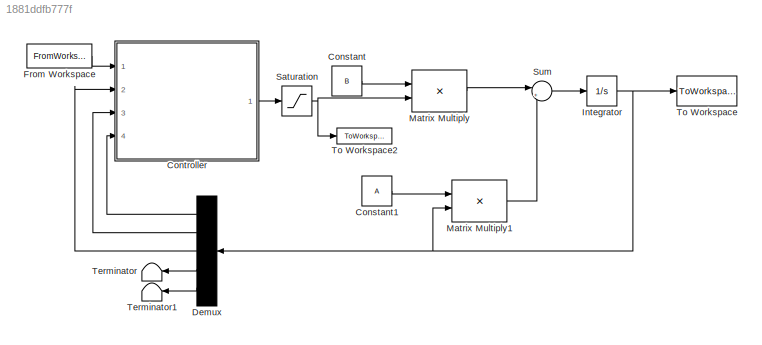
MODEL slx_1881ddfb777f
KIND model
CONFIG AbsTol = auto
CONFIG FixedStep = auto
CONFIG MaxStep = auto
CONFIG MinStep = auto
CONFIG RelTol = 1e-3
CONFIG SampleTimeConstraint = Unconstrained
CONFIG Solver = VariableStepAuto
CONFIG SolverMode = Auto
CONFIG SolverName = VariableStepAuto
CONFIG StartTime = 0.0
CONFIG StopTime = total_time
BLOCK [Constant] Constant
  Value = B
BLOCK [Constant] Constant1
  Value = A
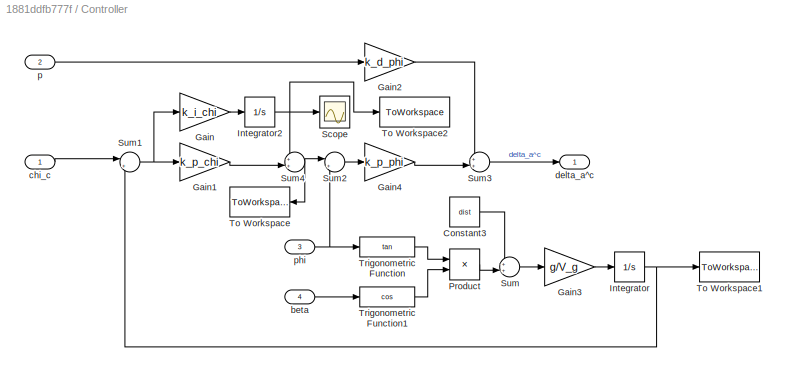
BLOCK [SubSystem] Controller
  Ports = [4, 1]
  RequestExecContextInheritance = off
  Variant = off
BLOCK [Constant] Controller/Constant3
  Value = dist
BLOCK [Gain] Controller/Gain
  Gain = k_i_chi
  OutDataTypeStr = Inherit: Inherit via internal rule
  ParamDataTypeStr = Inherit: Inherit via internal rule
  SaturateOnIntegerOverflow = off
BLOCK [Gain] Controller/Gain1
  Gain = k_p_chi
  OutDataTypeStr = Inherit: Inherit via internal rule
  ParamDataTypeStr = Inherit: Inherit via internal rule
  SaturateOnIntegerOverflow = off
BLOCK [Gain] Controller/Gain2
  Gain = k_d_phi
  OutDataTypeStr = Inherit: Inherit via internal rule
  ParamDataTypeStr = Inherit: Inherit via internal rule
  SaturateOnIntegerOverflow = off
BLOCK [Gain] Controller/Gain3
  Gain = g/V_g
  OutDataTypeStr = Inherit: Inherit via internal rule
  ParamDataTypeStr = Inherit: Inherit via internal rule
  SaturateOnIntegerOverflow = off
BLOCK [Gain] Controller/Gain4
  Gain = k_p_phi
  OutDataTypeStr = Inherit: Inherit via internal rule
  ParamDataTypeStr = Inherit: Inherit via internal rule
  SaturateOnIntegerOverflow = off
BLOCK [Integrator] Controller/Integrator
  Ports = [1, 1]
BLOCK [Integrator] Controller/Integrator2
  Ports = [1, 1]
BLOCK [Product] Controller/Product
  InputSameDT = off
  OutDataTypeStr = Inherit: Inherit via internal rule
  Ports = [2, 1]
  RndMeth = Floor
  SaturateOnIntegerOverflow = off
BLOCK [Scope] Controller/Scope
  Ports = [1]
  ScopeSpecificationString = Simulink.scopes.TimeScopeBlockCfg('CurrentConfiguration', extmgr.ConfigurationSet(extmgr.Configuration('Core','General UI',true),extmgr.Configuration('Core','Source UI',true),extmgr.Configuration('Sources','WiredSimulink',true),extmgr.Configuration('Visuals','Time Domain',true,'SerializedDisplays',{struct('MinYLimReal','-157.86133','MaxYLimReal','1388.77177','YLabelReal','','MinYLimMag',' 0.00000'...<+1404ch>
BLOCK [Sum] Controller/Sum
  IconShape = round
  InputSameDT = off
  Inputs = ++|
  OutDataTypeStr = Inherit: Inherit via internal rule
  Ports = [2, 1]
  SaturateOnIntegerOverflow = off
BLOCK [Sum] Controller/Sum1
  IconShape = round
  InputSameDT = off
  Inputs = |+-
  OutDataTypeStr = Inherit: Inherit via internal rule
  Ports = [2, 1]
  SaturateOnIntegerOverflow = off
BLOCK [Sum] Controller/Sum2
  IconShape = round
  InputSameDT = off
  Inputs = |+-
  OutDataTypeStr = Inherit: Inherit via internal rule
  Ports = [2, 1]
  SaturateOnIntegerOverflow = off
BLOCK [Sum] Controller/Sum3
  IconShape = round
  InputSameDT = off
  Inputs = ++|
  OutDataTypeStr = Inherit: Inherit via internal rule
  Ports = [2, 1]
  SaturateOnIntegerOverflow = off
BLOCK [Sum] Controller/Sum4
  IconShape = round
  InputSameDT = off
  Inputs = ++|
  OutDataTypeStr = Inherit: Inherit via internal rule
  Ports = [2, 1]
  SaturateOnIntegerOverflow = off
BLOCK [ToWorkspace] Controller/To Workspace
  FixptAsFi = on
  MaxDataPoints = inf
  Ports = [1]
  SampleTime = -1
  Save2DSignal = 3-D array (concatenate along third dimension)
  SaveFormat = Timeseries
  VariableName = phi_c
BLOCK [ToWorkspace] Controller/To Workspace1
  FixptAsFi = on
  MaxDataPoints = inf
  Ports = [1]
  SampleTime = -1
  Save2DSignal = 3-D array (concatenate along third dimension)
  SaveFormat = Timeseries
  VariableName = chi
BLOCK [ToWorkspace] Controller/To Workspace2
  FixptAsFi = on
  MaxDataPoints = inf
  Ports = [1]
  SampleTime = -1
  Save2DSignal = 3-D array (concatenate along third dimension)
  SaveFormat = Timeseries
  VariableName = intergratorTerm
BLOCK [Trigonometry] Controller/Trigonometric Function
  Operator = tan
  Ports = [1, 1]
BLOCK [Trigonometry] Controller/Trigonometric Function1
  Operator = cos
  Ports = [1, 1]
BLOCK [Inport] Controller/beta
  IconDisplay = Port number
  Port = 4
BLOCK [Inport] Controller/chi_c
  IconDisplay = Port number
BLOCK [Outport] Controller/delta_a^c
  IconDisplay = Port number
BLOCK [Inport] Controller/p
  IconDisplay = Port number
  Port = 2
BLOCK [Inport] Controller/phi
  IconDisplay = Port number
  Port = 3
BLOCK [Demux] Demux
  DisplayOption = bar
  Outputs = 5
  Ports = [1, 5]
BLOCK [FromWorkspace] From Workspace
  SampleTime = 0
  VariableName = chi_c
  ZeroCross = on
BLOCK [Integrator] Integrator
  Ports = [1, 1]
BLOCK [Product] Matrix Multiply
  InputSameDT = off
  Multiplication = Matrix(*)
  OutDataTypeStr = Inherit: Inherit via internal rule
  Ports = [2, 1]
  RndMeth = Floor
  SaturateOnIntegerOverflow = off
BLOCK [Product] Matrix Multiply1
  InputSameDT = off
  Multiplication = Matrix(*)
  OutDataTypeStr = Inherit: Inherit via internal rule
  Ports = [2, 1]
  RndMeth = Floor
  SaturateOnIntegerOverflow = off
BLOCK [Saturate] Saturation
  InputPortMap = u0
  LowerLimit = deg2rad(-25)
  Ports = [1, 1]
  UpperLimit = deg2rad(25)
BLOCK [Sum] Sum
  IconShape = round
  InputSameDT = off
  Inputs = |++
  OutDataTypeStr = Inherit: Inherit via internal rule
  Ports = [2, 1]
  SaturateOnIntegerOverflow = off
BLOCK [Terminator] Terminator
BLOCK [Terminator] Terminator1
BLOCK [ToWorkspace] To Workspace
  FixptAsFi = on
  MaxDataPoints = inf
  Ports = [1]
  SampleTime = -1
  Save2DSignal = 3-D array (concatenate along third dimension)
  SaveFormat = Timeseries
  VariableName = x
BLOCK [ToWorkspace] To Workspace2
  FixptAsFi = on
  MaxDataPoints = inf
  Ports = [1]
  SampleTime = -1
  Save2DSignal = 3-D array (concatenate along third dimension)
  SaveFormat = Timeseries
  VariableName = delta_a_c
LINE Constant1:1 -> Matrix Multiply1:1
LINE Constant:1 -> Matrix Multiply:1
LINE Controller/Constant3:1 -> Controller/Sum:1
LINE Controller/Gain1:1 -> Controller/Sum4:2
LINE Controller/Gain2:1 -> Controller/Sum3:1
LINE Controller/Gain3:1 -> Controller/Integrator:1
LINE Controller/Gain4:1 -> Controller/Sum3:2
LINE Controller/Gain:1 -> Controller/Integrator2:1
NET Controller/Integrator2:1 -> Controller/Scope:1, Controller/Sum4:1, Controller/To Workspace2:1
NET Controller/Integrator:1 -> Controller/Sum1:2, Controller/To Workspace1:1
LINE Controller/Product:1 -> Controller/Sum:2
NET Controller/Sum1:1 -> Controller/Gain1:1, Controller/Gain:1
LINE Controller/Sum2:1 -> Controller/Gain4:1
LINE Controller/Sum3:1 -> Controller/delta_a^c:1
NET Controller/Sum4:1 -> Controller/Sum2:1, Controller/To Workspace:1
LINE Controller/Sum:1 -> Controller/Gain3:1
LINE Controller/Trigonometric Function1:1 -> Controller/Product:2
LINE Controller/Trigonometric Function:1 -> Controller/Product:1
LINE Controller/beta:1 -> Controller/Trigonometric Function1:1
LINE Controller/chi_c:1 -> Controller/Sum1:1
LINE Controller/p:1 -> Controller/Gain2:1
NET Controller/phi:1 -> Controller/Sum2:2, Controller/Trigonometric Function:1
LINE Controller:1 -> Saturation:1
LINE Demux:1 -> Controller:4
LINE Demux:2 -> Controller:3
LINE Demux:3 -> Controller:2
LINE Demux:4 -> Terminator:1
LINE Demux:5 -> Terminator1:1
LINE From Workspace:1 -> Controller:1
NET Integrator:1 -> Demux:1, Matrix Multiply1:2, To Workspace:1
LINE Matrix Multiply1:1 -> Sum:2
LINE Matrix Multiply:1 -> Sum:1
NET Saturation:1 -> Matrix Multiply:2, To Workspace2:1
LINE Sum:1 -> Integrator:1
note: NET lines group one-source signal fan-out (src -> all destinations, sorted); 1:1 wires keep LINE
